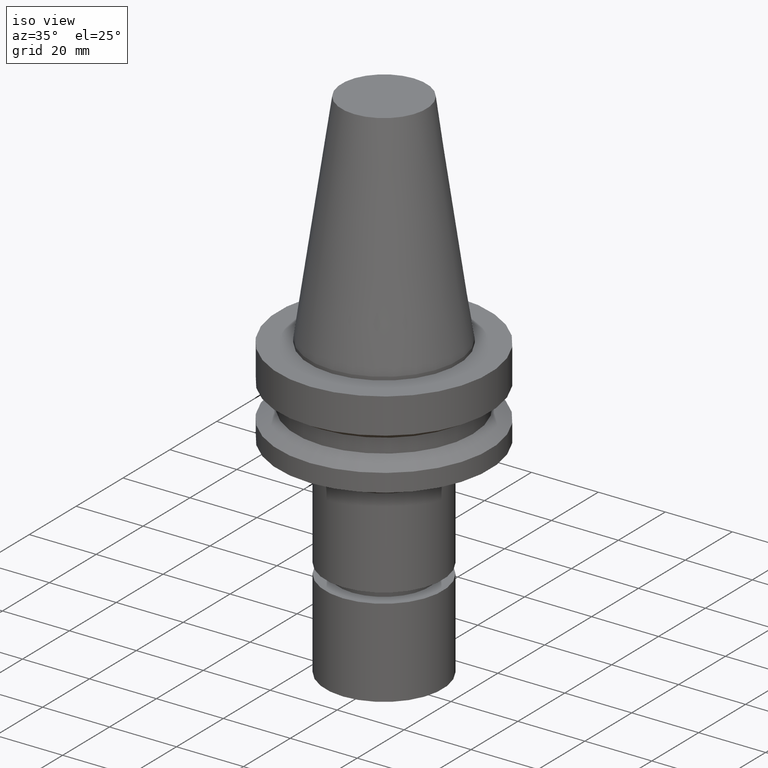
[diagram: clean part render]
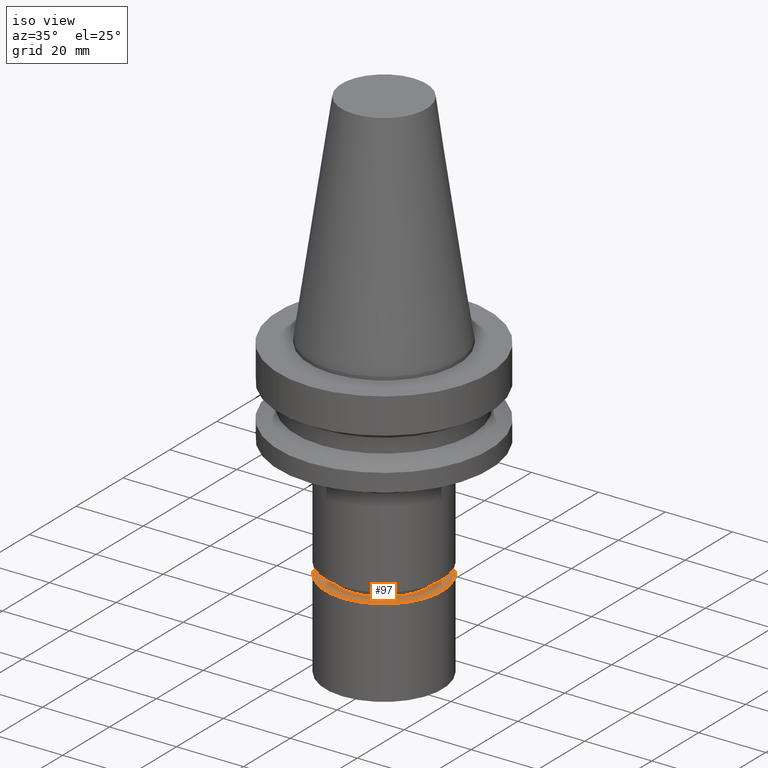
[diagram: same view with one face highlighted and labeled with its STEP entity id]
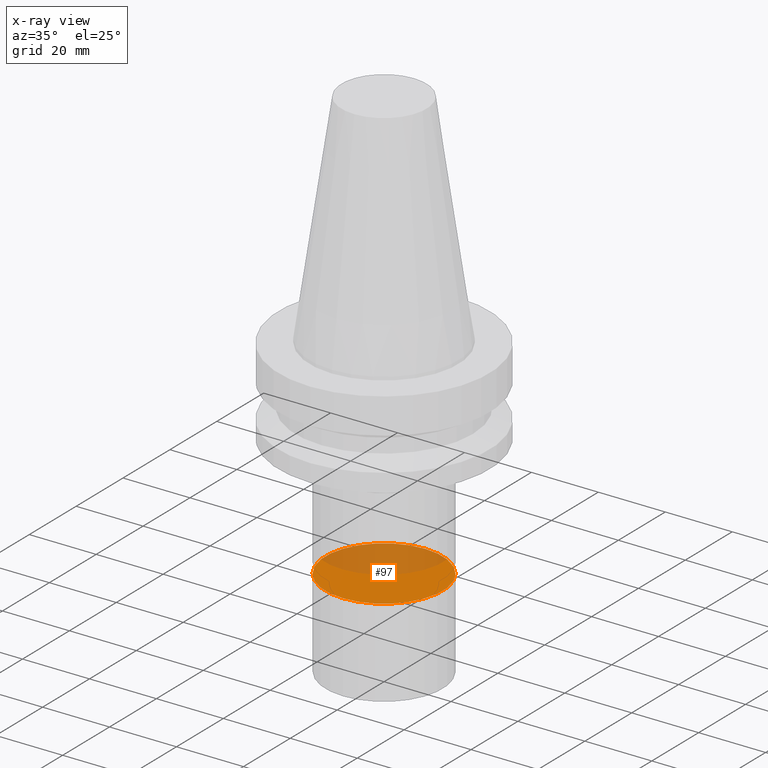
[diagram: x-ray of the same camera — body ghosted, the highlighted face saturated]
A machine part, iso view. The second image highlights one B-rep face of the part: STEP entity #97.
The next image is the same camera in x-ray: the body ghosted, the highlighted face saturated — about 42% of this face is hidden behind the body in this view.
In plain terms, the highlighted planar face has unit normal (-0, -0, 1).
Its self-contained STEP definition (entity closure, byte-faithful):
#97=ADVANCED_FACE('Unnamed[1]',(#233),#234,.T.);
#125=EDGE_CURVE('Unnamed[1]',#276,#276,#277,.T.);
#233=FACE_OUTER_BOUND('',#416,.T.);
#234=PLANE('',#417);
#276=VERTEX_POINT('',#471);
#277=CIRCLE('',#472,17.5);
#416=EDGE_LOOP('',(#614));
#417=AXIS2_PLACEMENT_3D('',#615,#616,#617);
#471=CARTESIAN_POINT('',(3.8882545216242E-015,17.5,-63.500015258789));
#472=AXIS2_PLACEMENT_3D('',#662,#663,#664);
#614=ORIENTED_EDGE('',*,*,#125,.F.);
#615=CARTESIAN_POINT('',(3.8882545216242E-015,8.75000000000003,-63.500015258789));
#616=DIRECTION('',(-6.12323399573677E-017,-1.22464679914735E-016,1.0));
#617=DIRECTION('',(1.23259516440783E-032,-1.0,-1.22464679914735E-016));
#662=CARTESIAN_POINT('',(3.8882545216242E-015,5.68825266849501E-014,-63.500015258789));
#663=DIRECTION('',(6.12323399573677E-017,-1.56164866711506E-016,-1.0));
#664=DIRECTION('',(4.73518747710695E-033,1.0,-1.56164866711506E-016));